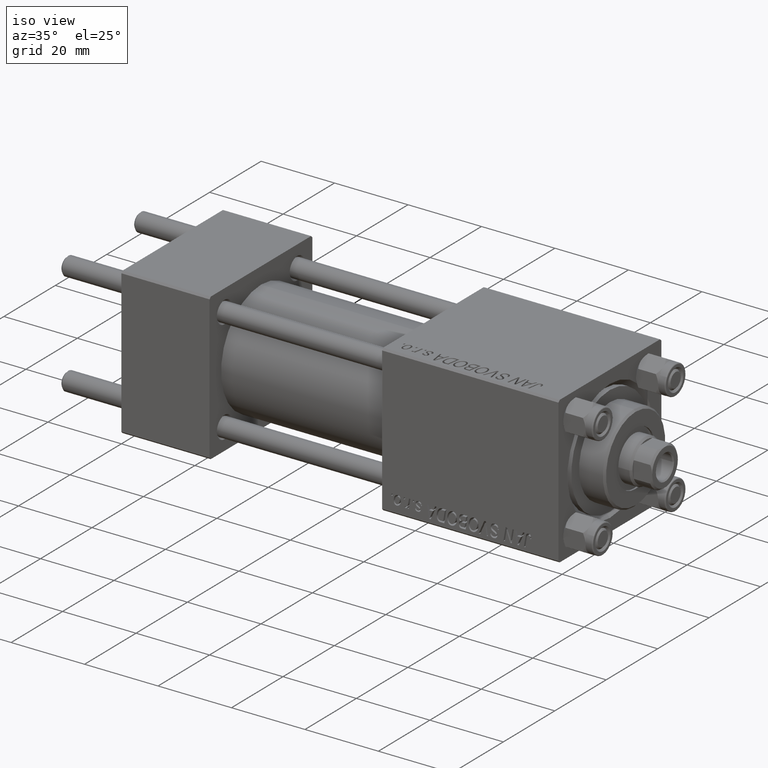
[diagram: clean part render]
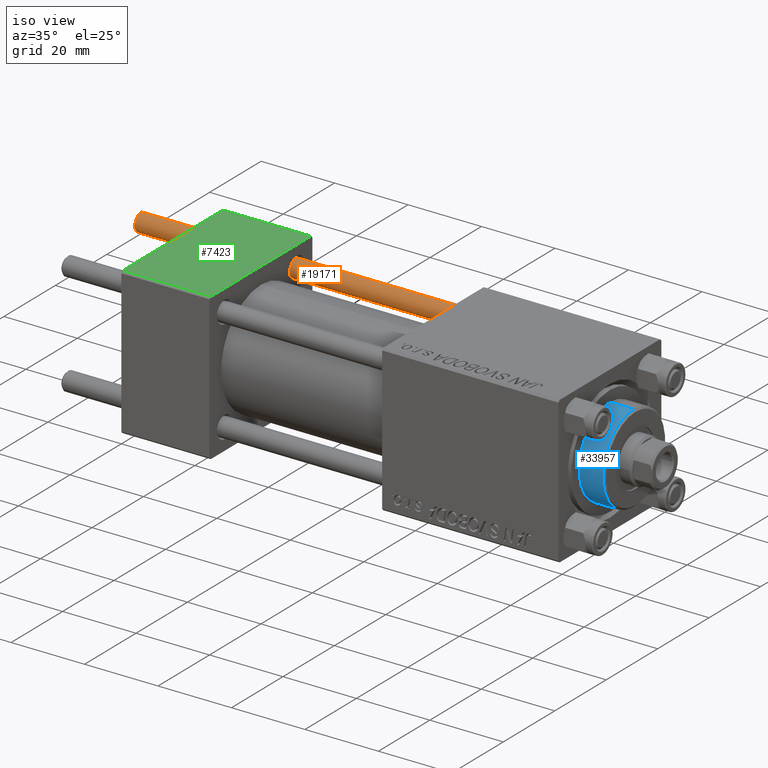
[diagram: same view with three faces highlighted in distinct colors, each labeled with its STEP entity id]
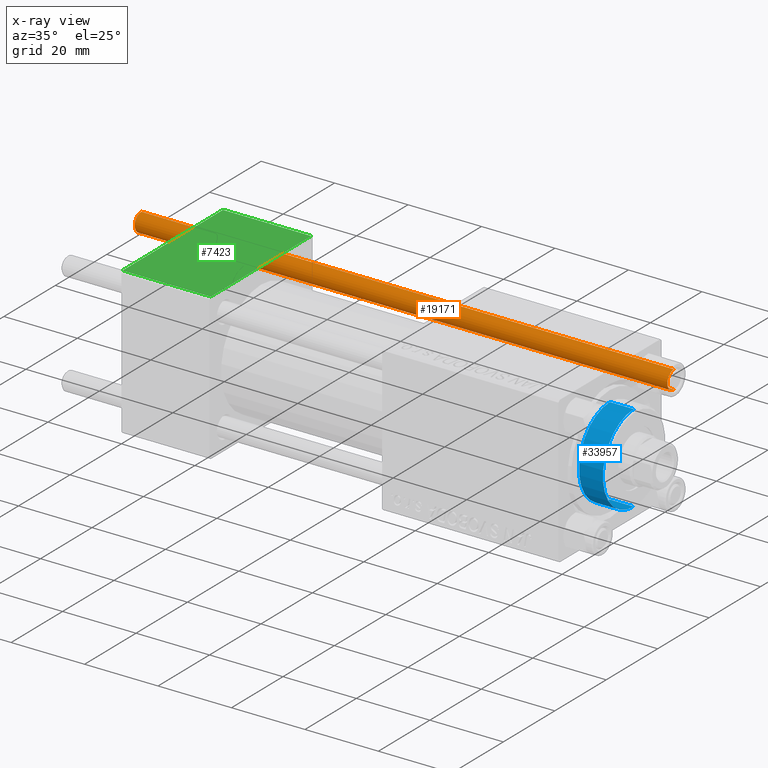
[diagram: x-ray of the same camera — body ghosted, the three highlighted faces saturated]
A machine part, iso view with three faces highlighted in distinct colors.
The next image is the same camera in x-ray (body ghosted, the three faces saturated) — at least one of them is partly hidden behind the body in this view.
Their STEP definitions:

[orange] entity #19171 — the highlighted cylindrical surface (edge-blend (fillet) strip) has radius 2.5 mm, axis along (-1, -0, -0).
#840 = FACE_OUTER_BOUND ( 'NONE', #49313, .T. ) ;
#2295 = VECTOR ( 'NONE', #37269, 1000.000000000000000 ) ;
#10072 = VERTEX_POINT ( 'NONE', #46166 ) ;
#10318 = EDGE_CURVE ( 'NONE', #22378, #30867, #39599, .T. ) ;
#10542 = CARTESIAN_POINT ( 'NONE',  ( 0.000000000000000000, 0.000000000000000000, 0.5000000000000559552 ) ) ;
#14842 = DIRECTION ( 'NONE',  ( -1.000000000000000000, 0.000000000000000000, 0.000000000000000000 ) ) ;
#15222 = AXIS2_PLACEMENT_3D ( 'NONE', #10542, #45303, #29924 ) ;
#16195 = CARTESIAN_POINT ( 'NONE',  ( 2.500000000000000000, 3.061616997868383141E-16, 0.5000000000000559552 ) ) ;
#19171 = ADVANCED_FACE ( 'NONE', ( #840 ), #31278, .T. ) ;
#20076 = CARTESIAN_POINT ( 'NONE',  ( -2.500000000000000000, 0.000000000000000000, 0.5000000000000559552 ) ) ;
#20192 = CARTESIAN_POINT ( 'NONE',  ( 2.500000000000000000, 3.061616997868383141E-16, 146.0000000000000000 ) ) ;
#20535 = CARTESIAN_POINT ( 'NONE',  ( 0.000000000000000000, 0.000000000000000000, 145.5000000000000284 ) ) ;
#22378 = VERTEX_POINT ( 'NONE', #39868 ) ;
#23143 = EDGE_CURVE ( 'NONE', #22378, #10072, #37447, .T. ) ;
#28473 = AXIS2_PLACEMENT_3D ( 'NONE', #49698, #33988, #14842 ) ;
#29514 = ORIENTED_EDGE ( 'NONE', *, *, #41543, .T. ) ;
#29924 = DIRECTION ( 'NONE',  ( 1.000000000000000000, 0.000000000000000000, 0.000000000000000000 ) ) ;
#30867 = VERTEX_POINT ( 'NONE', #16195 ) ;
#31278 = CYLINDRICAL_SURFACE ( 'NONE', #28473, 2.500000000000000000 ) ;
#32806 = ORIENTED_EDGE ( 'NONE', *, *, #23143, .T. ) ;
#33988 = DIRECTION ( 'NONE',  ( -0.000000000000000000, -0.000000000000000000, -1.000000000000000000 ) ) ;
#36052 = DIRECTION ( 'NONE',  ( -0.000000000000000000, -0.000000000000000000, -1.000000000000000000 ) ) ;
#37269 = DIRECTION ( 'NONE',  ( -0.000000000000000000, -0.000000000000000000, -1.000000000000000000 ) ) ;
#37447 = CIRCLE ( 'NONE', #39065, 2.500000000000000000 ) ;
#37739 = ORIENTED_EDGE ( 'NONE', *, *, #44781, .T. ) ;
#38643 = ORIENTED_EDGE ( 'NONE', *, *, #10318, .F. ) ;
#39065 = AXIS2_PLACEMENT_3D ( 'NONE', #20535, #47261, #43477 ) ;
#39599 = LINE ( 'NONE', #20192, #41871 ) ;
#39868 = CARTESIAN_POINT ( 'NONE',  ( 2.500000000000000000, 3.061616997868383141E-16, 145.5000000000000284 ) ) ;
#40987 = CIRCLE ( 'NONE', #15222, 2.500000000000000000 ) ;
#41543 = EDGE_CURVE ( 'NONE', #10072, #41691, #44579, .T. ) ;
#41691 = VERTEX_POINT ( 'NONE', #20076 ) ;
#41871 = VECTOR ( 'NONE', #36052, 1000.000000000000000 ) ;
#43477 = DIRECTION ( 'NONE',  ( 1.000000000000000000, 0.000000000000000000, 0.000000000000000000 ) ) ;
#44579 = LINE ( 'NONE', #48114, #2295 ) ;
#44781 = EDGE_CURVE ( 'NONE', #41691, #30867, #40987, .T. ) ;
#45303 = DIRECTION ( 'NONE',  ( -0.000000000000000000, -0.000000000000000000, 1.000000000000000000 ) ) ;
#46166 = CARTESIAN_POINT ( 'NONE',  ( -2.500000000000000000, 0.000000000000000000, 145.5000000000000284 ) ) ;
#47261 = DIRECTION ( 'NONE',  ( 0.000000000000000000, 0.000000000000000000, -1.000000000000000000 ) ) ;
#48114 = CARTESIAN_POINT ( 'NONE',  ( -2.500000000000000000, 0.000000000000000000, 146.0000000000000000 ) ) ;
#49313 = EDGE_LOOP ( 'NONE', ( #38643, #32806, #29514, #37739 ) ) ;
#49698 = CARTESIAN_POINT ( 'NONE',  ( 0.000000000000000000, 0.000000000000000000, 146.0000000000000000 ) ) ;

[blue] entity #33957 — the highlighted cylindrical surface (partial cylindrical patch) has radius 12 mm, axis along (-1, -0, 0).
#1498 = ORIENTED_EDGE ( 'NONE', *, *, #38524, .F. ) ;
#1573 = LINE ( 'NONE', #9861, #38157 ) ;
#2108 = CARTESIAN_POINT ( 'NONE',  ( -12.00000000000000178, 0.000000000000000000, 28.69999999999999929 ) ) ;
#4768 = CARTESIAN_POINT ( 'NONE',  ( 12.00000000000000178, 1.469576158976824144E-15, 28.69999999999999929 ) ) ;
#5654 = DIRECTION ( 'NONE',  ( 1.000000000000000000, 0.000000000000000000, 0.000000000000000000 ) ) ;
#7460 = VERTEX_POINT ( 'NONE', #4768 ) ;
#8790 = AXIS2_PLACEMENT_3D ( 'NONE', #43126, #38604, #19453 ) ;
#9831 = CARTESIAN_POINT ( 'NONE',  ( 12.00000000000000178, 1.469576158976824144E-15, 35.19999999999999574 ) ) ;
#9861 = CARTESIAN_POINT ( 'NONE',  ( -12.00000000000000178, 0.000000000000000000, 35.70000000000000284 ) ) ;
#10345 = DIRECTION ( 'NONE',  ( -1.000000000000000000, 0.000000000000000000, 0.000000000000000000 ) ) ;
#12941 = VERTEX_POINT ( 'NONE', #2108 ) ;
#13794 = ORIENTED_EDGE ( 'NONE', *, *, #18929, .T. ) ;
#14616 = CARTESIAN_POINT ( 'NONE',  ( 0.000000000000000000, 0.000000000000000000, 35.70000000000000284 ) ) ;
#16634 = CARTESIAN_POINT ( 'NONE',  ( 12.00000000000000178, 1.469576158976824144E-15, 35.70000000000000284 ) ) ;
#18929 = EDGE_CURVE ( 'NONE', #32399, #49079, #42157, .T. ) ;
#19453 = DIRECTION ( 'NONE',  ( 1.000000000000000000, 0.000000000000000000, 0.000000000000000000 ) ) ;
#19846 = EDGE_CURVE ( 'NONE', #49079, #12941, #1573, .T. ) ;
#25221 = DIRECTION ( 'NONE',  ( -0.000000000000000000, -0.000000000000000000, -1.000000000000000000 ) ) ;
#26434 = DIRECTION ( 'NONE',  ( -0.000000000000000000, -0.000000000000000000, -1.000000000000000000 ) ) ;
#29629 = AXIS2_PLACEMENT_3D ( 'NONE', #14616, #26434, #10345 ) ;
#31713 = CARTESIAN_POINT ( 'NONE',  ( -12.00000000000000178, 0.000000000000000000, 35.19999999999999574 ) ) ;
#32331 = CARTESIAN_POINT ( 'NONE',  ( 0.000000000000000000, 0.000000000000000000, 35.19999999999999574 ) ) ;
#32399 = VERTEX_POINT ( 'NONE', #9831 ) ;
#33957 = ADVANCED_FACE ( 'NONE', ( #44862 ), #37050, .T. ) ;
#34588 = ORIENTED_EDGE ( 'NONE', *, *, #44436, .T. ) ;
#37050 = CYLINDRICAL_SURFACE ( 'NONE', #29629, 12.00000000000000178 ) ;
#37344 = AXIS2_PLACEMENT_3D ( 'NONE', #32331, #40394, #5654 ) ;
#38157 = VECTOR ( 'NONE', #25221, 1000.000000000000000 ) ;
#38524 = EDGE_CURVE ( 'NONE', #32399, #7460, #43349, .T. ) ;
#38604 = DIRECTION ( 'NONE',  ( 0.000000000000000000, 0.000000000000000000, 1.000000000000000000 ) ) ;
#39804 = DIRECTION ( 'NONE',  ( -0.000000000000000000, -0.000000000000000000, -1.000000000000000000 ) ) ;
#40394 = DIRECTION ( 'NONE',  ( 0.000000000000000000, 0.000000000000000000, -1.000000000000000000 ) ) ;
#42157 = CIRCLE ( 'NONE', #37344, 12.00000000000000178 ) ;
#42241 = ORIENTED_EDGE ( 'NONE', *, *, #19846, .T. ) ;
#43126 = CARTESIAN_POINT ( 'NONE',  ( 0.000000000000000000, 0.000000000000000000, 28.69999999999999929 ) ) ;
#43349 = LINE ( 'NONE', #16634, #44799 ) ;
#43384 = CIRCLE ( 'NONE', #8790, 12.00000000000000178 ) ;
#44364 = EDGE_LOOP ( 'NONE', ( #1498, #13794, #42241, #34588 ) ) ;
#44436 = EDGE_CURVE ( 'NONE', #12941, #7460, #43384, .T. ) ;
#44799 = VECTOR ( 'NONE', #39804, 1000.000000000000000 ) ;
#44862 = FACE_OUTER_BOUND ( 'NONE', #44364, .T. ) ;
#49079 = VERTEX_POINT ( 'NONE', #31713 ) ;

[green] entity #7423 — the highlighted planar face has unit normal (0, 0, -1).
#1561 = DIRECTION ( 'NONE',  ( -1.000000000000000000, 0.000000000000000000, 0.000000000000000000 ) ) ;
#4302 = CARTESIAN_POINT ( 'NONE',  ( 0.000000000000000000, 19.50000000000000000, 20.00000000000000000 ) ) ;
#5404 = LINE ( 'NONE', #43931, #33432 ) ;
#5761 = AXIS2_PLACEMENT_3D ( 'NONE', #49621, #42060, #10820 ) ;
#7423 = ADVANCED_FACE ( 'NONE', ( #14851 ), #29724, .F. ) ;
#8373 = DIRECTION ( 'NONE',  ( 1.000000000000000000, 0.000000000000000000, 0.000000000000000000 ) ) ;
#8596 = EDGE_CURVE ( 'NONE', #42925, #42132, #16648, .T. ) ;
#9425 = DIRECTION ( 'NONE',  ( 0.000000000000000000, -1.000000000000000000, -2.602085213965210149E-16 ) ) ;
#9950 = VERTEX_POINT ( 'NONE', #24780 ) ;
#10820 = DIRECTION ( 'NONE',  ( 0.000000000000000000, 1.000000000000000000, 2.602085213965210149E-16 ) ) ;
#11817 = EDGE_CURVE ( 'NONE', #42132, #28476, #24792, .T. ) ;
#14851 = FACE_OUTER_BOUND ( 'NONE', #15638, .T. ) ;
#15638 = EDGE_LOOP ( 'NONE', ( #31083, #18700, #33620, #48713 ) ) ;
#16404 = CARTESIAN_POINT ( 'NONE',  ( 0.000000000000000000, 19.50000000000000000, 20.00000000000000000 ) ) ;
#16648 = LINE ( 'NONE', #16404, #24138 ) ;
#18700 = ORIENTED_EDGE ( 'NONE', *, *, #19106, .T. ) ;
#19106 = EDGE_CURVE ( 'NONE', #28476, #9950, #42879, .T. ) ;
#24138 = VECTOR ( 'NONE', #1561, 1000.000000000000000 ) ;
#24780 = CARTESIAN_POINT ( 'NONE',  ( 24.00000000000000000, -19.49999999999999289, 19.99999999999998934 ) ) ;
#24792 = LINE ( 'NONE', #28822, #41945 ) ;
#28476 = VERTEX_POINT ( 'NONE', #45772 ) ;
#28822 = CARTESIAN_POINT ( 'NONE',  ( 0.000000000000000000, 20.00000000000000000, 20.00000000000000000 ) ) ;
#29724 = PLANE ( 'NONE',  #5761 ) ;
#31083 = ORIENTED_EDGE ( 'NONE', *, *, #11817, .T. ) ;
#33432 = VECTOR ( 'NONE', #9425, 1000.000000000000000 ) ;
#33620 = ORIENTED_EDGE ( 'NONE', *, *, #35592, .F. ) ;
#34815 = CARTESIAN_POINT ( 'NONE',  ( 24.00000000000000000, -19.49999999999999289, 19.99999999999998934 ) ) ;
#35266 = CARTESIAN_POINT ( 'NONE',  ( 24.00000000000000000, 19.50000000000000000, 20.00000000000000000 ) ) ;
#35592 = EDGE_CURVE ( 'NONE', #42925, #9950, #5404, .T. ) ;
#41945 = VECTOR ( 'NONE', #44195, 1000.000000000000000 ) ;
#42060 = DIRECTION ( 'NONE',  ( 0.000000000000000000, 2.602085213965210149E-16, -1.000000000000000000 ) ) ;
#42132 = VERTEX_POINT ( 'NONE', #4302 ) ;
#42879 = LINE ( 'NONE', #34815, #44603 ) ;
#42925 = VERTEX_POINT ( 'NONE', #35266 ) ;
#43931 = CARTESIAN_POINT ( 'NONE',  ( 24.00000000000000000, 20.00000000000000000, 20.00000000000000000 ) ) ;
#44195 = DIRECTION ( 'NONE',  ( 0.000000000000000000, -1.000000000000000000, -2.602085213965210149E-16 ) ) ;
#44603 = VECTOR ( 'NONE', #8373, 1000.000000000000000 ) ;
#45772 = CARTESIAN_POINT ( 'NONE',  ( 0.000000000000000000, -19.49999999999999289, 19.99999999999998934 ) ) ;
#48713 = ORIENTED_EDGE ( 'NONE', *, *, #8596, .T. ) ;
#49621 = CARTESIAN_POINT ( 'NONE',  ( 24.00000000000000000, 20.00000000000000000, 20.00000000000000000 ) ) ;